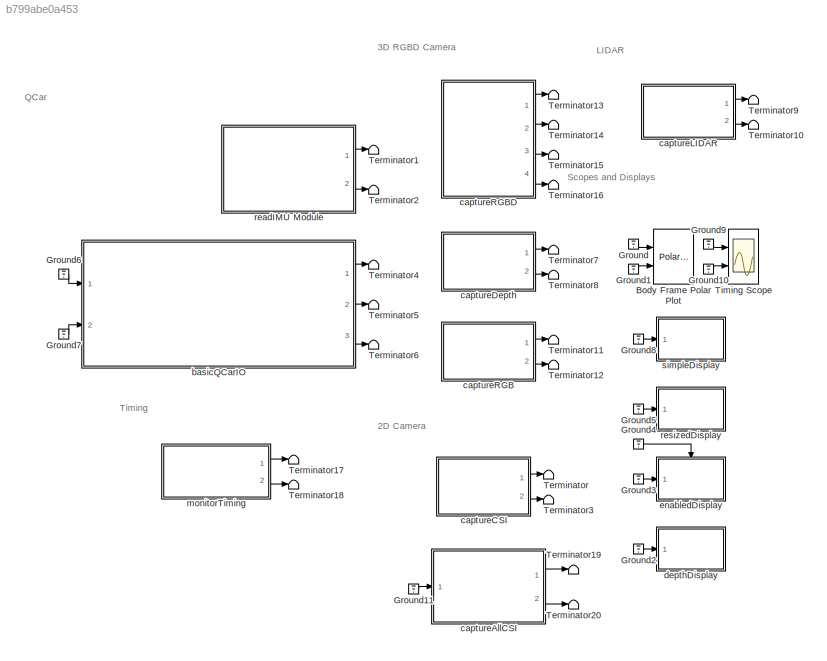
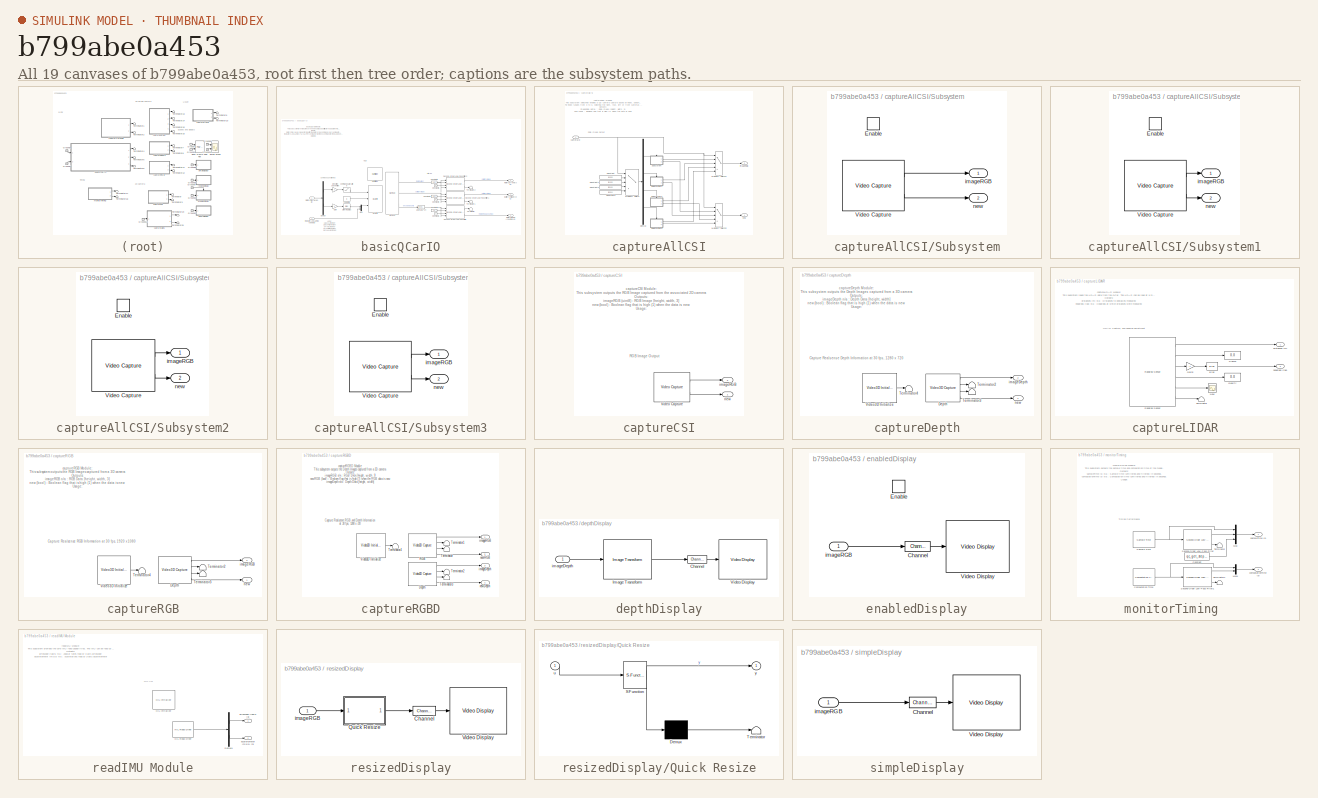
[diagram: thumbnail index - all 19 canvases of the model, root first then tree order]
MODEL slx_b799abe0a453
KIND model
CONFIG AbsTol = auto
CONFIG EnableMultiTasking = on
CONFIG FixedStep = 0.002
CONFIG MaxStep = auto
CONFIG MinStep = auto
CONFIG RelTol = 1e-3
CONFIG SampleTimeConstraint = Unconstrained
CONFIG Solver = ode2
CONFIG SolverName = ode2
CONFIG StartTime = 0.0
CONFIG StopTime = inf
BLOCK [Reference] Body Frame Polar Plot  REF=quarc_library/Sinks/Figures/Polar Figure
  Ports = [2]
  SourceBlock = quarc_library/Sinks/Figures/Polar Figure
  SourceProductName = QUARC Targets
  SourceType = Polar Figure
BLOCK [Ground] Ground
BLOCK [Ground] Ground1
BLOCK [Ground] Ground10
BLOCK [Ground] Ground11
BLOCK [Ground] Ground2
BLOCK [Ground] Ground3
BLOCK [Ground] Ground4
BLOCK [Ground] Ground5
BLOCK [Ground] Ground6
BLOCK [Ground] Ground7
BLOCK [Ground] Ground8
BLOCK [Ground] Ground9
BLOCK [Terminator] Terminator
BLOCK [Terminator] Terminator1
BLOCK [Terminator] Terminator10
BLOCK [Terminator] Terminator11
BLOCK [Terminator] Terminator12
BLOCK [Terminator] Terminator13
BLOCK [Terminator] Terminator14
BLOCK [Terminator] Terminator15
BLOCK [Terminator] Terminator16
BLOCK [Terminator] Terminator17
BLOCK [Terminator] Terminator18
BLOCK [Terminator] Terminator19
BLOCK [Terminator] Terminator2
BLOCK [Terminator] Terminator20
BLOCK [Terminator] Terminator3
BLOCK [Terminator] Terminator4
BLOCK [Terminator] Terminator5
BLOCK [Terminator] Terminator6
BLOCK [Terminator] Terminator7
BLOCK [Terminator] Terminator8
BLOCK [Terminator] Terminator9
BLOCK [Scope] Timing Scope
  Floating = off
  NumInputPorts = 2
  Ports = [2]
  ScopeSpecificationString = Simulink.scopes.TimeScopeBlockCfg('CurrentConfiguration', extmgr.ConfigurationSet(extmgr.Configuration('Core','General UI',true),extmgr.Configuration('Core','Source UI',true),extmgr.Configuration('Sources','WiredSimulink',true,'DataLoggingVariableName','ScopeData1'),extmgr.Configuration('Visuals','Time Domain',true,'SerializedDisplays',{struct('MinYLimReal','0','MaxYLimReal','0.1','YLabelReal','s'...<+3614ch>
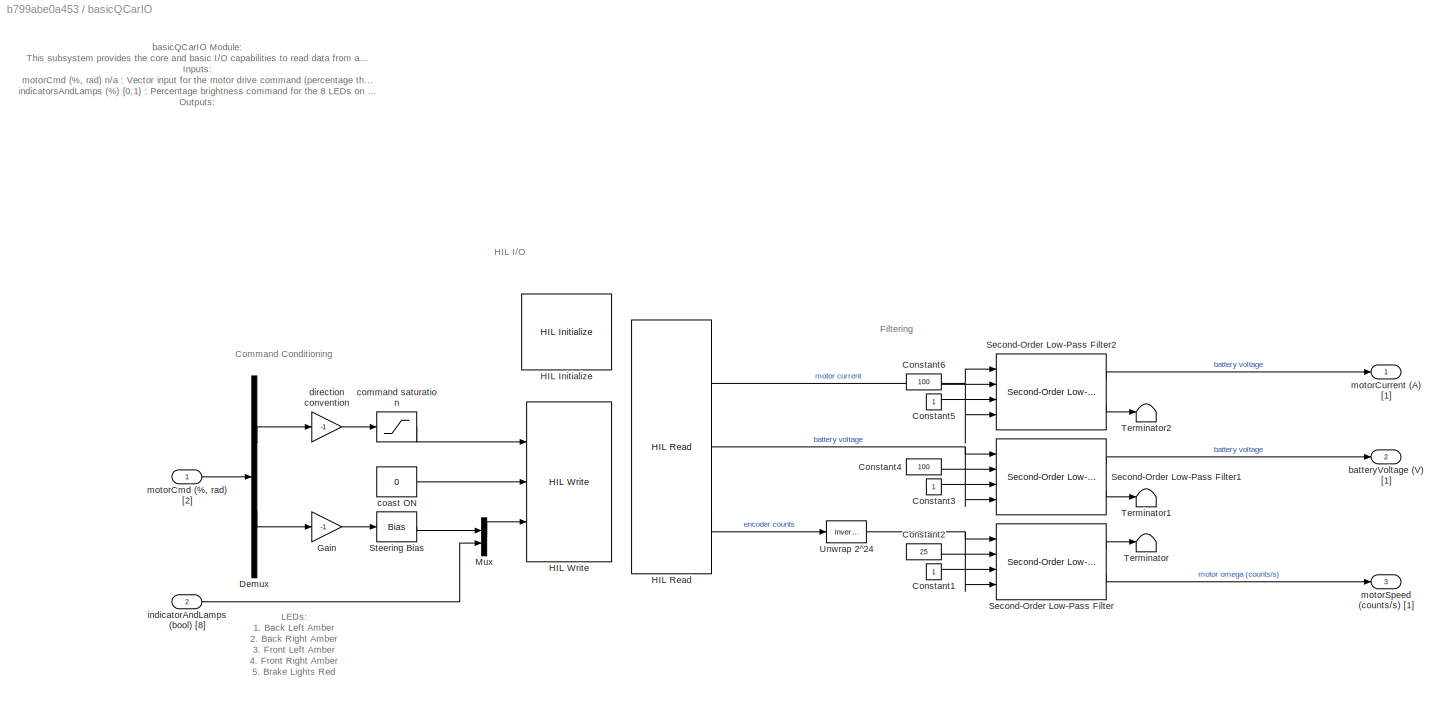
BLOCK [SubSystem] basicQCarIO
  Ports = [2, 3]
  RequestExecContextInheritance = off
BLOCK [Constant] basicQCarIO/Constant1
BLOCK [Constant] basicQCarIO/Constant2
  Value = 25
BLOCK [Constant] basicQCarIO/Constant3
BLOCK [Constant] basicQCarIO/Constant4
  Value = 100
BLOCK [Constant] basicQCarIO/Constant5
BLOCK [Constant] basicQCarIO/Constant6
  Value = 100
BLOCK [Demux] basicQCarIO/Demux
  DisplayOption = bar
  Outputs = 2
  Ports = [1, 2]
BLOCK [Gain] basicQCarIO/Gain
  Gain = -1
  OutDataTypeStr = Inherit: Inherit via internal rule
  ParamDataTypeStr = Inherit: Inherit via internal rule
  SaturateOnIntegerOverflow = off
BLOCK [Reference] basicQCarIO/HIL Initialize  REF=quarc_library/Data Acquisition/Generic/Configuration/HIL Initialize
  AttributesFormatString = %<object_name> (%<board_type>-%<board_number>)
  Ports = []
  SourceBlock = quarc_library/Data Acquisition/Generic/Configuration/HIL Initialize
  SourceProductName = QUARC Targets
  SourceType = HIL Initialize
  UserDataPersistent = on
BLOCK [Reference] basicQCarIO/HIL Read  REF=quarc_library/Data Acquisition/Generic/Immediate I//O/HIL Read
  AttributesFormatString = (%<object_name>)
  Ports = [0, 3]
  SourceBlock = quarc_library/Data Acquisition/Generic/Immediate I//O/HIL Read
  SourceProductName = QUARC Targets
  SourceType = HIL Read
  UserDataPersistent = on
BLOCK [Reference] basicQCarIO/HIL Write  REF=quarc_library/Data Acquisition/Generic/Immediate I//O/HIL Write
  AttributesFormatString = (%<object_name>)
  Ports = [3]
  SourceBlock = quarc_library/Data Acquisition/Generic/Immediate I//O/HIL Write
  SourceProductName = QUARC Targets
  SourceType = HIL Write
  UserDataPersistent = on
BLOCK [Mux] basicQCarIO/Mux
  DisplayOption = bar
  Inputs = 2
  Ports = [2, 1]
BLOCK [Reference] basicQCarIO/Second-Order Low-Pass Filter  REF=quarc_library/Continuous/Second-Order
Low-Pass Filter
  Ports = [4, 2]
  SourceBlock = quarc_library/Continuous/Second-Order\nLow-Pass Filter
  SourceProductName = QUARC Targets
  SourceType = Second-Order Low-Pass Filter
BLOCK [Reference] basicQCarIO/Second-Order Low-Pass Filter1  REF=quarc_library/Continuous/Second-Order
Low-Pass Filter
  Ports = [4, 2]
  SourceBlock = quarc_library/Continuous/Second-Order\nLow-Pass Filter
  SourceProductName = QUARC Targets
  SourceType = Second-Order Low-Pass Filter
BLOCK [Reference] basicQCarIO/Second-Order Low-Pass Filter2  REF=quarc_library/Continuous/Second-Order
Low-Pass Filter
  Ports = [4, 2]
  SourceBlock = quarc_library/Continuous/Second-Order\nLow-Pass Filter
  SourceProductName = QUARC Targets
  SourceType = Second-Order Low-Pass Filter
BLOCK [Bias] basicQCarIO/Steering Bias
  Bias = 0.0
  SaturateOnIntegerOverflow = off
BLOCK [Terminator] basicQCarIO/Terminator
BLOCK [Terminator] basicQCarIO/Terminator1
BLOCK [Terminator] basicQCarIO/Terminator2
BLOCK [Reference] basicQCarIO/Unwrap 2^24  REF=quarc_library/Discontinuities/Inverse
Modulus
  Ports = [1, 1]
  SourceBlock = quarc_library/Discontinuities/Inverse\nModulus
  SourceProductName = QUARC Targets
  SourceType = Inverse Modulus
BLOCK [Outport] basicQCarIO/batteryVoltage (V) [1]
  IconDisplay = Port number
  Port = 2
BLOCK [Constant] basicQCarIO/coast ON
  Value = 0
BLOCK [Saturate] basicQCarIO/command saturation
  InputPortMap = u0
  LowerLimit = -0.20
  Ports = [1, 1]
  UpperLimit = 0.20
BLOCK [Gain] basicQCarIO/direction convention
  Gain = -1
  OutDataTypeStr = Inherit: Inherit via internal rule
  ParamDataTypeStr = Inherit: Inherit via internal rule
  SaturateOnIntegerOverflow = off
BLOCK [Inport] basicQCarIO/indicatorAndLamps (bool) [8]
  IconDisplay = Port number
  Port = 2
BLOCK [Inport] basicQCarIO/motorCmd (%, rad) [2]
  IconDisplay = Port number
BLOCK [Outport] basicQCarIO/motorCurrent (A) [1]
  IconDisplay = Port number
BLOCK [Outport] basicQCarIO/motorSpeed (counts//s) [1]
  IconDisplay = Port number
  Port = 3
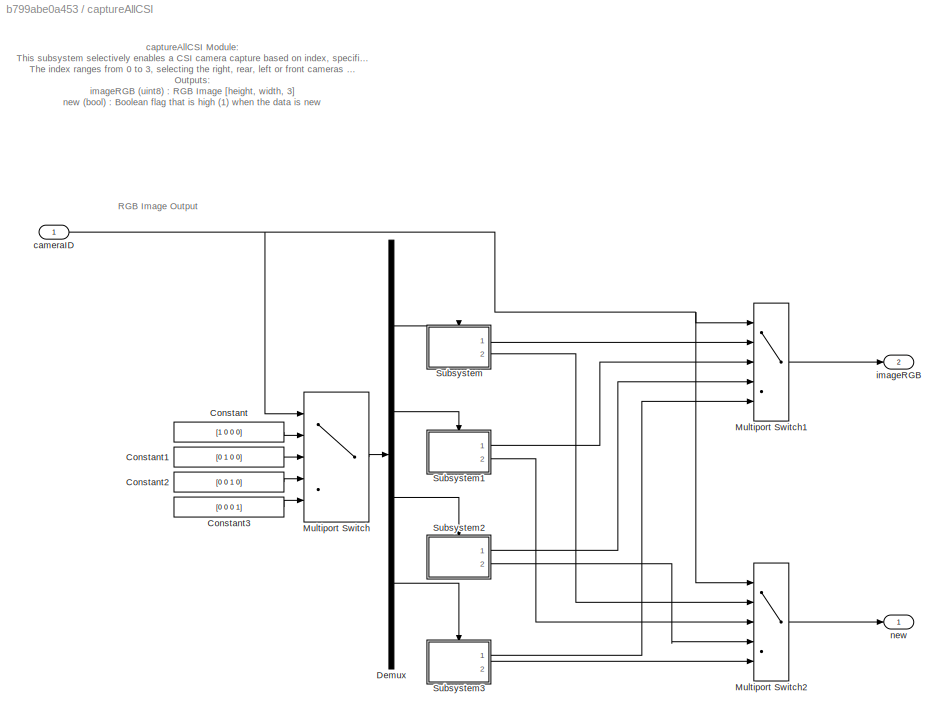
BLOCK [SubSystem] captureAllCSI
  Ports = [1, 2]
  RequestExecContextInheritance = off
BLOCK [Constant] captureAllCSI/Constant
  Value = [1 0 0 0]
BLOCK [Constant] captureAllCSI/Constant1
  Value = [0 1 0 0]
BLOCK [Constant] captureAllCSI/Constant2
  Value = [0 0 1 0]
BLOCK [Constant] captureAllCSI/Constant3
  Value = [0 0 0 1]
BLOCK [Demux] captureAllCSI/Demux
  DisplayOption = bar
  Ports = [1, 4]
BLOCK [MultiPortSwitch] captureAllCSI/Multiport Switch
  DataPortOrder = Zero-based contiguous
  DiagnosticForDefault = None
  InputSameDT = off
  Inputs = 4
  Ports = [5, 1]
  SaturateOnIntegerOverflow = off
  zeroidx = on
BLOCK [MultiPortSwitch] captureAllCSI/Multiport Switch1
  DataPortOrder = Zero-based contiguous
  DiagnosticForDefault = None
  InputSameDT = off
  Inputs = 4
  Ports = [5, 1]
  SaturateOnIntegerOverflow = off
  zeroidx = on
BLOCK [MultiPortSwitch] captureAllCSI/Multiport Switch2
  DataPortOrder = Zero-based contiguous
  DiagnosticForDefault = None
  InputSameDT = off
  Inputs = 4
  Ports = [5, 1]
  SaturateOnIntegerOverflow = off
  zeroidx = on
BLOCK [SubSystem] captureAllCSI/Subsystem
  Ports = [0, 2, 1]
  RequestExecContextInheritance = off
BLOCK [EnablePort] captureAllCSI/Subsystem/Enable
  Ports = []
BLOCK [Reference] captureAllCSI/Subsystem/Video Capture  REF=quarc_library/Multimedia/Video Capture
  Ports = [0, 2]
  SourceBlock = quarc_library/Multimedia/Video Capture
  SourceProductName = QUARC Targets
  SourceType = Video Capture
BLOCK [Outport] captureAllCSI/Subsystem/imageRGB
  IconDisplay = Port number
BLOCK [Outport] captureAllCSI/Subsystem/new
  IconDisplay = Port number
  Port = 2
BLOCK [SubSystem] captureAllCSI/Subsystem1
  Ports = [0, 2, 1]
  RequestExecContextInheritance = off
BLOCK [EnablePort] captureAllCSI/Subsystem1/Enable
  Ports = []
BLOCK [Reference] captureAllCSI/Subsystem1/Video Capture  REF=quarc_library/Multimedia/Video Capture
  Ports = [0, 2]
  SourceBlock = quarc_library/Multimedia/Video Capture
  SourceProductName = QUARC Targets
  SourceType = Video Capture
BLOCK [Outport] captureAllCSI/Subsystem1/imageRGB
  IconDisplay = Port number
BLOCK [Outport] captureAllCSI/Subsystem1/new
  IconDisplay = Port number
  Port = 2
BLOCK [SubSystem] captureAllCSI/Subsystem2
  Ports = [0, 2, 1]
  RequestExecContextInheritance = off
BLOCK [EnablePort] captureAllCSI/Subsystem2/Enable
  Ports = []
BLOCK [Reference] captureAllCSI/Subsystem2/Video Capture  REF=quarc_library/Multimedia/Video Capture
  Ports = [0, 2]
  SourceBlock = quarc_library/Multimedia/Video Capture
  SourceProductName = QUARC Targets
  SourceType = Video Capture
BLOCK [Outport] captureAllCSI/Subsystem2/imageRGB
  IconDisplay = Port number
BLOCK [Outport] captureAllCSI/Subsystem2/new
  IconDisplay = Port number
  Port = 2
BLOCK [SubSystem] captureAllCSI/Subsystem3
  Ports = [0, 2, 1]
  RequestExecContextInheritance = off
BLOCK [EnablePort] captureAllCSI/Subsystem3/Enable
  Ports = []
BLOCK [Reference] captureAllCSI/Subsystem3/Video Capture  REF=quarc_library/Multimedia/Video Capture
  Ports = [0, 2]
  SourceBlock = quarc_library/Multimedia/Video Capture
  SourceProductName = QUARC Targets
  SourceType = Video Capture
BLOCK [Outport] captureAllCSI/Subsystem3/imageRGB
  IconDisplay = Port number
BLOCK [Outport] captureAllCSI/Subsystem3/new
  IconDisplay = Port number
  Port = 2
BLOCK [Inport] captureAllCSI/cameraID
  IconDisplay = Port number
BLOCK [Outport] captureAllCSI/imageRGB
  IconDisplay = Port number
  Port = 2
BLOCK [Outport] captureAllCSI/new
  IconDisplay = Port number
BLOCK [SubSystem] captureCSI
  Ports = [0, 2]
  RequestExecContextInheritance = off
BLOCK [Reference] captureCSI/Video Capture  REF=quarc_library/Multimedia/Video Capture
  Ports = [0, 2]
  SourceBlock = quarc_library/Multimedia/Video Capture
  SourceProductName = QUARC Targets
  SourceType = Video Capture
BLOCK [Outport] captureCSI/imageRGB
  IconDisplay = Port number
  Port = 2
BLOCK [Outport] captureCSI/new
  IconDisplay = Port number
BLOCK [SubSystem] captureDepth
  Ports = [0, 2]
  RequestExecContextInheritance = off
BLOCK [Reference] captureDepth/Depth  REF=quarc_library/Multimedia/Video3D Capture
  Ports = [0, 4]
  SourceBlock = quarc_library/Multimedia/Video3D Capture
  SourceProductName = QUARC Targets
  SourceType = Video3D Capture
  UserDataPersistent = on
BLOCK [Terminator] captureDepth/Terminator2
BLOCK [Terminator] captureDepth/Terminator3
BLOCK [Terminator] captureDepth/Terminator4
BLOCK [Reference] captureDepth/Video3D Initialize  REF=quarc_library/Multimedia/Video3D Initialize
  Ports = [0, 1]
  SourceBlock = quarc_library/Multimedia/Video3D Initialize
  SourceProductName = QUARC Targets
  SourceType = Video3D Initialize
BLOCK [Outport] captureDepth/imageDepth
  IconDisplay = Port number
  Port = 2
BLOCK [Outport] captureDepth/new
  IconDisplay = Port number
BLOCK [SubSystem] captureLIDAR
  Ports = [0, 2]
  RequestExecContextInheritance = off
BLOCK [Bias] captureLIDAR/Bias
  Bias = pi/2
  SaturateOnIntegerOverflow = off
BLOCK [Gain] captureLIDAR/Gain2
  Gain = -1
  OutDataTypeStr = Inherit: Inherit via internal rule
  ParamDataTypeStr = Inherit: Inherit via internal rule
  SaturateOnIntegerOverflow = off
BLOCK [Scope] captureLIDAR/New
  Floating = off
  NumInputPorts = 1
  Ports = [1]
  ScopeSpecificationString = Simulink.scopes.TimeScopeBlockCfg('CurrentConfiguration', extmgr.ConfigurationSet(extmgr.Configuration('Core','General UI',true),extmgr.Configuration('Core','Source UI',true),extmgr.Configuration('Sources','WiredSimulink',true,'DataLoggingLimitDataPoints',true,'DataLoggingSaveFormat','Array','DataLoggingDecimation','1','DataLoggingDecimateData',true),extmgr.Configuration('Visuals','Time Domain',tr...<+1623ch>
BLOCK [Display] captureLIDAR/Quality
  Commented = on
  Decimation = 1
  Ports = [1]
BLOCK [Reference] captureLIDAR/Ranging Sensor  REF=quarc_library/Devices/Third-Party/Distance Sensors/Ranging Sensor
  Ports = [0, 6]
  SourceBlock = quarc_library/Devices/Third-Party/Distance Sensors/Ranging Sensor
  SourceProductName = QUARC Targets
  SourceType = Ranging Sensor
BLOCK [Display] captureLIDAR/Sigma
  Commented = on
  Decimation = 1
  Ports = [1]
BLOCK [Terminator] captureLIDAR/Terminator
BLOCK [Outport] captureLIDAR/distances (m)
  IconDisplay = Port number
BLOCK [Outport] captureLIDAR/headings (rad)
  IconDisplay = Port number
  Port = 2
BLOCK [SubSystem] captureRGB
  Ports = [0, 2]
  RequestExecContextInheritance = off
BLOCK [Reference] captureRGB/Depth  REF=quarc_library/Multimedia/Video3D Capture
  Ports = [0, 4]
  SourceBlock = quarc_library/Multimedia/Video3D Capture
  SourceProductName = QUARC Targets
  SourceType = Video3D Capture
  UserDataPersistent = on
BLOCK [Terminator] captureRGB/Terminator2
BLOCK [Terminator] captureRGB/Terminator3
BLOCK [Terminator] captureRGB/Terminator4
BLOCK [Reference] captureRGB/Video3D Initialize  REF=quarc_library/Multimedia/Video3D Initialize
  Ports = [0, 1]
  SourceBlock = quarc_library/Multimedia/Video3D Initialize
  SourceProductName = QUARC Targets
  SourceType = Video3D Initialize
BLOCK [Outport] captureRGB/imageRGB
  IconDisplay = Port number
  Port = 2
BLOCK [Outport] captureRGB/new
  IconDisplay = Port number
BLOCK [SubSystem] captureRGBD
  Ports = [0, 4]
  RequestExecContextInheritance = off
BLOCK [Reference] captureRGBD/Depth  REF=quarc_library/Multimedia/Video3D Capture
  Ports = [0, 4]
  SourceBlock = quarc_library/Multimedia/Video3D Capture
  SourceProductName = QUARC Targets
  SourceType = Video3D Capture
  UserDataPersistent = on
BLOCK [Reference] captureRGBD/RGB  REF=quarc_library/Multimedia/Video3D Capture
  Ports = [0, 4]
  SourceBlock = quarc_library/Multimedia/Video3D Capture
  SourceProductName = QUARC Targets
  SourceType = Video3D Capture
  UserDataPersistent = on
BLOCK [Terminator] captureRGBD/Terminator
BLOCK [Terminator] captureRGBD/Terminator1
BLOCK [Terminator] captureRGBD/Terminator2
BLOCK [Terminator] captureRGBD/Terminator3
BLOCK [Terminator] captureRGBD/Terminator4
BLOCK [Reference] captureRGBD/Video3D Initialize  REF=quarc_library/Multimedia/Video3D Initialize
  Ports = [0, 1]
  SourceBlock = quarc_library/Multimedia/Video3D Initialize
  SourceProductName = QUARC Targets
  SourceType = Video3D Initialize
BLOCK [Outport] captureRGBD/imageDepth
  IconDisplay = Port number
  Port = 3
BLOCK [Outport] captureRGBD/imageRGB
  IconDisplay = Port number
BLOCK [Outport] captureRGBD/newDepth
  IconDisplay = Port number
  Port = 4
BLOCK [Outport] captureRGBD/newRGB
  IconDisplay = Port number
  Port = 2
BLOCK [SubSystem] depthDisplay
  Ports = [1]
  RequestExecContextInheritance = off
BLOCK [Reference] depthDisplay/Channel  REF=quarc_library/Signal Routing/Channel
  Ports = [1, 1]
  SourceBlock = quarc_library/Signal Routing/Channel
  SourceProductName = QUARC Targets
  SourceType = Channel
BLOCK [Reference] depthDisplay/Image Transform  REF=quarc_library/Image Processing/Generic/Image Transform
  AttributesFormatString = (%<algorithm>)
  Ports = [1, 1]
  SourceBlock = quarc_library/Image Processing/Generic/Image Transform
  SourceProductName = QUARC Targets
  SourceType = Image Transform
BLOCK [Reference] depthDisplay/Video Display  REF=quarc_library/Multimedia/Video Display
  Ports = [1]
  SourceBlock = quarc_library/Multimedia/Video Display
  SourceProductName = QUARC Targets
  SourceType = Video Display
  Tag = Essential_Unit/depthDisplay/Video Display
  UserDataPersistent = on
BLOCK [Inport] depthDisplay/imageDepth
  IconDisplay = Port number
BLOCK [SubSystem] enabledDisplay
  Ports = [1, 0, 1]
  RequestExecContextInheritance = off
BLOCK [Reference] enabledDisplay/Channel  REF=quarc_library/Signal Routing/Channel
  Ports = [1, 1]
  SourceBlock = quarc_library/Signal Routing/Channel
  SourceProductName = QUARC Targets
  SourceType = Channel
BLOCK [EnablePort] enabledDisplay/Enable
  Ports = []
  PropagateVarSize = During execution
BLOCK [Reference] enabledDisplay/Video Display  REF=quarc_library/Multimedia/Video Display
  Ports = [1]
  SourceBlock = quarc_library/Multimedia/Video Display
  SourceProductName = QUARC Targets
  SourceType = Video Display
  Tag = Essential_Unit/enabledDisplay/Video Display
  UserDataPersistent = on
BLOCK [Inport] enabledDisplay/imageRGB
  IconDisplay = Port number
BLOCK [SubSystem] monitorTiming 
  Ports = [0, 2]
  RequestExecContextInheritance = off
BLOCK [Reference] monitorTiming /Computation Time  REF=quarc_library/Sources/Time/Computation Time
  Ports = [0, 1]
  SourceBlock = quarc_library/Sources/Time/Computation Time
  SourceProductName = QUARC Targets
  SourceType = Computation Time
BLOCK [Constant] monitorTiming /Constant
  Value = qc_get_step_size
BLOCK [Mux] monitorTiming /Mux
  DisplayOption = bar
  Inputs = 3
  Ports = [3, 1]
BLOCK [Mux] monitorTiming /Mux1
  DisplayOption = bar
  Inputs = 2
  Ports = [2, 1]
BLOCK [Reference] monitorTiming /Sample Time  REF=quarc_library/Sources/Time/Sample Time
  Ports = [0, 1]
  Priority = -99
  SourceBlock = quarc_library/Sources/Time/Sample Time
  SourceProductName = QUARC Targets
  SourceType = Sample Time
BLOCK [Reference] monitorTiming /Second-Order Low-Pass Filter  REF=quarc_library/Continuous/Second-Order
Low-Pass Filter
  Ports = [1, 2]
  SourceBlock = quarc_library/Continuous/Second-Order\nLow-Pass Filter
  SourceProductName = QUARC Targets
  SourceType = Second-Order Low-Pass Filter
BLOCK [Reference] monitorTiming /Second-Order Low-Pass Filter1  REF=quarc_library/Continuous/Second-Order
Low-Pass Filter
  Ports = [1, 2]
  SourceBlock = quarc_library/Continuous/Second-Order\nLow-Pass Filter
  SourceProductName = QUARC Targets
  SourceType = Second-Order Low-Pass Filter
BLOCK [Terminator] monitorTiming /Terminator
BLOCK [Terminator] monitorTiming /Terminator1
BLOCK [Outport] monitorTiming /computationTime (s)
  IconDisplay = Port number
  Port = 2
BLOCK [Outport] monitorTiming /sampleTime (s)
  IconDisplay = Port number
BLOCK [SubSystem] readIMU Module
  Ports = [0, 2]
  RequestExecContextInheritance = off
BLOCK [Demux] readIMU Module/Demux1
  DisplayOption = bar
  Outputs = [3 3]
  Ports = [1, 2]
BLOCK [Reference] readIMU Module/HIL Initialize  REF=quarc_library/Data Acquisition/Generic/Configuration/HIL Initialize
  AttributesFormatString = %<object_name> (%<board_type>-%<board_number>)
  Ports = []
  SourceBlock = quarc_library/Data Acquisition/Generic/Configuration/HIL Initialize
  SourceProductName = QUARC Targets
  SourceType = HIL Initialize
  UserDataPersistent = on
BLOCK [Reference] readIMU Module/HIL Read Other  REF=quarc_library/Data Acquisition/Generic/Immediate I//O/HIL Read Other
  AttributesFormatString = (%<object_name>)
  Ports = [0, 1]
  SourceBlock = quarc_library/Data Acquisition/Generic/Immediate I//O/HIL Read Other
  SourceProductName = QUARC Targets
  SourceType = HIL Read Other
  UserDataPersistent = on
BLOCK [Outport] readIMU Module/accelerometer (m//s//s) [3]
  IconDisplay = Port number
  Port = 2
BLOCK [Outport] readIMU Module/gyroscope (rad//s) [3]
  IconDisplay = Port number
BLOCK [SubSystem] resizedDisplay
  Ports = [1]
  RequestExecContextInheritance = off
BLOCK [Reference] resizedDisplay/Channel  REF=quarc_library/Signal Routing/Channel
  Ports = [1, 1]
  SourceBlock = quarc_library/Signal Routing/Channel
  SourceProductName = QUARC Targets
  SourceType = Channel
BLOCK [SubSystem] resizedDisplay/Quick Resize
  ErrorFcn = Stateflow.Translate.translate
  PermitHierarchicalResolution = ExplicitOnly
  Ports = [1, 1]
  RequestExecContextInheritance = off
  SFBlockType = MATLAB Function
  TreatAsAtomicUnit = on
BLOCK [Demux] resizedDisplay/Quick Resize/ Demux 
  Outputs = 1
  Ports = [1, 1]
BLOCK [S-Function] resizedDisplay/Quick Resize/ SFunction 
  EnableBusSupport = on
  FunctionName = sf_sfun
  PortCounts = [1 2]
  Ports = [1, 2]
  SFcnIsStateOwnerBlock = off
  SFunctionDeploymentMode = off
  Tag = Stateflow S-Function Essential_Unit 2
BLOCK [Terminator] resizedDisplay/Quick Resize/ Terminator 
BLOCK [Inport] resizedDisplay/Quick Resize/u
  IconDisplay = Port number
BLOCK [Outport] resizedDisplay/Quick Resize/y
  IconDisplay = Port number
BLOCK [Reference] resizedDisplay/Video Display  REF=quarc_library/Multimedia/Video Display
  Ports = [1]
  SourceBlock = quarc_library/Multimedia/Video Display
  SourceProductName = QUARC Targets
  SourceType = Video Display
  Tag = Essential_Unit/resizedDisplay/Video Display
  UserDataPersistent = on
BLOCK [Inport] resizedDisplay/imageRGB
  IconDisplay = Port number
BLOCK [SubSystem] simpleDisplay
  Ports = [1]
  RequestExecContextInheritance = off
BLOCK [Reference] simpleDisplay/Channel  REF=quarc_library/Signal Routing/Channel
  Ports = [1, 1]
  SourceBlock = quarc_library/Signal Routing/Channel
  SourceProductName = QUARC Targets
  SourceType = Channel
BLOCK [Reference] simpleDisplay/Video Display  REF=quarc_library/Multimedia/Video Display
  Ports = [1]
  SourceBlock = quarc_library/Multimedia/Video Display
  SourceProductName = QUARC Targets
  SourceType = Video Display
  Tag = Essential_Unit/simpleDisplay/Video Display
  UserDataPersistent = on
BLOCK [Inport] simpleDisplay/imageRGB
  IconDisplay = Port number
ANNOTATION (root): 2D Camera
ANNOTATION (root): 3D RGBD Camera
ANNOTATION (root): LIDAR
ANNOTATION (root): QCar
ANNOTATION (root): Scopes and Displays
ANNOTATION (root): Timing
ANNOTATION basicQCarIO: basicQCarIO Module: This subsystem provides the core and basic I/O capabilities to read data from and write data to the QCar platform. The HIL Initialize block configures the IO settings, and the HIL Write and Read blocks are used for the actual IO. You can also monitor sample and communication times. Inputs: motorCmd (%, rad) n/a : Vector input for the motor drive command (percentage throttle) as...<+426ch>
ANNOTATION basicQCarIO: LEDs: 1. Back Left Amber 2. Back Right Amber 3. Front Left Amber 4. Front Right Amber 5. Brake Lights Red 6. Reverse White 7. Left Headlamps White 8. Right Headlamps White
ANNOTATION basicQCarIO: Command Conditioning
ANNOTATION basicQCarIO: Filtering
ANNOTATION basicQCarIO: HIL I/O
ANNOTATION captureAllCSI: captureAllCSI Module: This subsystem selectively enables a CSI camera capture based on index, specifically for the QCar. The index ranges from 0 to 3, selecting the right, rear, left or front cameras respectively. The computation time in this case is NOT quadrupled, as only one camera provides the image at a time. Outputs: imageRGB (uint8) : RGB Image [height, width, 3] new (bool) : Boolean flag t...<+36ch>
ANNOTATION captureAllCSI: RGB Image Output
ANNOTATION captureCSI: captureCSI Module: This subsystem outputs the RGB Image captured from the associated 2D camera Outputs: imageRGB (uint8) : RGB Image [height, width, 3] new (bool) : Boolean flag that is high (1) when the data is new Usage: Double-click the Video Capture block and set the 'Device Identifier' parameter to the desired value. Also set the desired resolution and frame rate.
ANNOTATION captureCSI: RGB Image Output
ANNOTATION captureDepth: captureDepth Module: This subsystem outputs the Depth Images captured from a 3D camera Outputs: image Depth n/a : Depth Data [height, width] new (bool) : Boolean flag that is high (1) when the data is new Usage: Connect the new ports to the Enable/Trigger port of Enabled/Triggered subsystems that contain your code when using the image data.
ANNOTATION captureDepth: Capture Realsense Depth Information at 30 fps, 1280 x 720
ANNOTATION captureLIDAR: captureLIDAR Module: This subsystem reads the LIDAR data from the QCar. The LIDAR can be read at a maximum rate of 10 Hz, and outputs 720 points of data (every 0.5 degrees). Outputs: distances (m) n/a : Distances to obstacles measured headings (rad) n/a : Headings at which distances were measured
ANNOTATION captureLIDAR: LIDAR Capture, and heading adjustment
ANNOTATION captureRGB: captureRGB Module: This subsystem outputs the RGB Images captured from a 3D camera Outputs: imageRGB n/a : RGB Data [height, width, 3] new (bool) : Boolean flag that is high (1) when the data is new Usage: Connect the new ports to the Enable/Trigger port of Enabled/Triggered subsystems that contain your code when using the image data.
ANNOTATION captureRGB: Capture Realsense RGB Information at 30 fps, 1920 x 1080
ANNOTATION captureRGBD: captureRGBD Module: This subsystem outputs the Depth Images captured from a 3D camera Outputs: imageRGB n/a : RGB Data [height, width, 3] newRGB (bool) : Boolean flag that is high (1) when the RGB data is new imageDepth n/a : Depth Data [height, width] newDepth (bool) : Boolean flag that is high (1) when the depth data is new Usage: Connect the new ports to the Enable/Trigger port of Enabled/Trigg...<+65ch>
ANNOTATION captureRGBD: Capture Realsense RGB and Depth Information at 30 fps, 1280 x 720
ANNOTATION monitorTiming : moniorTiming Module: This subsystem outputs the sample time and computation time of the model. Outputs: sampleTime (s) n/a : Sample time (unfiltered and filtered) in seconds. computationTime (s) n/a : Computation time (unfiltered and filtered) in seconds. Usage: Compare the Sample Time (s) output to a constant (qc_get_step_size) to monitor whether or not the desired sample time is being achieved. ...<+145ch>
ANNOTATION monitorTiming : Timing Performance
ANNOTATION readIMU Module: readIMU Module: This subsystem provides the core IMU read capabilities. The IMU can be read up to a maximum rate of 500 Hz, and thus should typically be read using a separate block than other reads. Outputs: gyroscope (rad/s) n/a : Angular rates read by 3-axis gyroscope accelerometer (m/s/s) n/a : Accelerations read by 3-axis accelerometer
ANNOTATION readIMU Module: HIL I/O
LINE Ground10:1 -> Timing Scope:2
LINE Ground11:1 -> captureAllCSI:1
LINE Ground1:1 -> Body Frame Polar Plot:2
LINE Ground2:1 -> depthDisplay:1
LINE Ground3:1 -> enabledDisplay:1
LINE Ground4:1 -> enabledDisplay:enable
LINE Ground5:1 -> resizedDisplay:1
LINE Ground6:1 -> basicQCarIO:1
LINE Ground7:1 -> basicQCarIO:2
LINE Ground8:1 -> simpleDisplay:1
LINE Ground9:1 -> Timing Scope:1
LINE Ground:1 -> Body Frame Polar Plot:1
LINE basicQCarIO/Constant1:1 -> basicQCarIO/Second-Order Low-Pass Filter:3
LINE basicQCarIO/Constant2:1 -> basicQCarIO/Second-Order Low-Pass Filter:2
LINE basicQCarIO/Constant3:1 -> basicQCarIO/Second-Order Low-Pass Filter1:3
LINE basicQCarIO/Constant4:1 -> basicQCarIO/Second-Order Low-Pass Filter1:2
LINE basicQCarIO/Constant5:1 -> basicQCarIO/Second-Order Low-Pass Filter2:3
LINE basicQCarIO/Constant6:1 -> basicQCarIO/Second-Order Low-Pass Filter2:2
LINE basicQCarIO/Demux:1 -> basicQCarIO/direction convention:1
LINE basicQCarIO/Demux:2 -> basicQCarIO/Gain:1
LINE basicQCarIO/Gain:1 -> basicQCarIO/Steering Bias:1
NET basicQCarIO/HIL Read:1 -> basicQCarIO/Second-Order Low-Pass Filter2:1, basicQCarIO/Second-Order Low-Pass Filter2:4
NET basicQCarIO/HIL Read:2 -> basicQCarIO/Second-Order Low-Pass Filter1:1, basicQCarIO/Second-Order Low-Pass Filter1:4
LINE basicQCarIO/HIL Read:3 -> basicQCarIO/Unwrap 2^24:1
LINE basicQCarIO/Mux:1 -> basicQCarIO/HIL Write:3
LINE basicQCarIO/Second-Order Low-Pass Filter1:1 -> basicQCarIO/batteryVoltage (V) [1]:1
LINE basicQCarIO/Second-Order Low-Pass Filter1:2 -> basicQCarIO/Terminator1:1
LINE basicQCarIO/Second-Order Low-Pass Filter2:1 -> basicQCarIO/motorCurrent (A) [1]:1
LINE basicQCarIO/Second-Order Low-Pass Filter2:2 -> basicQCarIO/Terminator2:1
LINE basicQCarIO/Second-Order Low-Pass Filter:1 -> basicQCarIO/Terminator:1
LINE basicQCarIO/Second-Order Low-Pass Filter:2 -> basicQCarIO/motorSpeed (counts//s) [1]:1
LINE basicQCarIO/Steering Bias:1 -> basicQCarIO/Mux:1
NET basicQCarIO/Unwrap 2^24:1 -> basicQCarIO/Second-Order Low-Pass Filter:1, basicQCarIO/Second-Order Low-Pass Filter:4
LINE basicQCarIO/coast ON:1 -> basicQCarIO/HIL Write:2
LINE basicQCarIO/command saturation:1 -> basicQCarIO/HIL Write:1
LINE basicQCarIO/direction convention:1 -> basicQCarIO/command saturation:1
LINE basicQCarIO/indicatorAndLamps (bool) [8]:1 -> basicQCarIO/Mux:2
LINE basicQCarIO/motorCmd (%, rad) [2]:1 -> basicQCarIO/Demux:1
LINE basicQCarIO:1 -> Terminator4:1
LINE basicQCarIO:2 -> Terminator5:1
LINE basicQCarIO:3 -> Terminator6:1
LINE captureAllCSI/Constant1:1 -> captureAllCSI/Multiport Switch:3
LINE captureAllCSI/Constant2:1 -> captureAllCSI/Multiport Switch:4
LINE captureAllCSI/Constant3:1 -> captureAllCSI/Multiport Switch:5
LINE captureAllCSI/Constant:1 -> captureAllCSI/Multiport Switch:2
LINE captureAllCSI/Demux:1 -> captureAllCSI/Subsystem:enable
LINE captureAllCSI/Demux:2 -> captureAllCSI/Subsystem1:enable
LINE captureAllCSI/Demux:3 -> captureAllCSI/Subsystem2:enable
LINE captureAllCSI/Demux:4 -> captureAllCSI/Subsystem3:enable
LINE captureAllCSI/Multiport Switch1:1 -> captureAllCSI/imageRGB:1
LINE captureAllCSI/Multiport Switch2:1 -> captureAllCSI/new:1
LINE captureAllCSI/Multiport Switch:1 -> captureAllCSI/Demux:1
LINE captureAllCSI/Subsystem/Video Capture:1 -> captureAllCSI/Subsystem/imageRGB:1
LINE captureAllCSI/Subsystem/Video Capture:2 -> captureAllCSI/Subsystem/new:1
LINE captureAllCSI/Subsystem1/Video Capture:1 -> captureAllCSI/Subsystem1/imageRGB:1
LINE captureAllCSI/Subsystem1/Video Capture:2 -> captureAllCSI/Subsystem1/new:1
LINE captureAllCSI/Subsystem1:1 -> captureAllCSI/Multiport Switch1:3
LINE captureAllCSI/Subsystem1:2 -> captureAllCSI/Multiport Switch2:3
LINE captureAllCSI/Subsystem2/Video Capture:1 -> captureAllCSI/Subsystem2/imageRGB:1
LINE captureAllCSI/Subsystem2/Video Capture:2 -> captureAllCSI/Subsystem2/new:1
LINE captureAllCSI/Subsystem2:1 -> captureAllCSI/Multiport Switch1:4
LINE captureAllCSI/Subsystem2:2 -> captureAllCSI/Multiport Switch2:4
LINE captureAllCSI/Subsystem3/Video Capture:1 -> captureAllCSI/Subsystem3/imageRGB:1
LINE captureAllCSI/Subsystem3/Video Capture:2 -> captureAllCSI/Subsystem3/new:1
LINE captureAllCSI/Subsystem3:1 -> captureAllCSI/Multiport Switch1:5
LINE captureAllCSI/Subsystem3:2 -> captureAllCSI/Multiport Switch2:5
LINE captureAllCSI/Subsystem:1 -> captureAllCSI/Multiport Switch1:2
LINE captureAllCSI/Subsystem:2 -> captureAllCSI/Multiport Switch2:2
NET captureAllCSI/cameraID:1 -> captureAllCSI/Multiport Switch1:1, captureAllCSI/Multiport Switch2:1, captureAllCSI/Multiport Switch:1
LINE captureAllCSI:1 -> Terminator19:1
LINE captureAllCSI:2 -> Terminator20:1
LINE captureCSI/Video Capture:1 -> captureCSI/imageRGB:1
LINE captureCSI/Video Capture:2 -> captureCSI/new:1
LINE captureCSI:1 -> Terminator:1
LINE captureCSI:2 -> Terminator3:1
LINE captureDepth/Depth:1 -> captureDepth/imageDepth:1
LINE captureDepth/Depth:2 -> captureDepth/Terminator2:1
LINE captureDepth/Depth:3 -> captureDepth/Terminator3:1
LINE captureDepth/Depth:4 -> captureDepth/new:1
LINE captureDepth/Video3D Initialize:1 -> captureDepth/Terminator4:1
LINE captureDepth:1 -> Terminator7:1
LINE captureDepth:2 -> Terminator8:1
LINE captureLIDAR/Bias:1 -> captureLIDAR/headings (rad):1
LINE captureLIDAR/Gain2:1 -> captureLIDAR/Bias:1
LINE captureLIDAR/Ranging Sensor:1 -> captureLIDAR/distances (m):1
LINE captureLIDAR/Ranging Sensor:2 -> captureLIDAR/Sigma:1
LINE captureLIDAR/Ranging Sensor:3 -> captureLIDAR/Gain2:1
LINE captureLIDAR/Ranging Sensor:4 -> captureLIDAR/Quality:1
LINE captureLIDAR/Ranging Sensor:5 -> captureLIDAR/New:1
LINE captureLIDAR/Ranging Sensor:6 -> captureLIDAR/Terminator:1
LINE captureLIDAR:1 -> Terminator9:1
LINE captureLIDAR:2 -> Terminator10:1
LINE captureRGB/Depth:1 -> captureRGB/imageRGB:1
LINE captureRGB/Depth:2 -> captureRGB/Terminator2:1
LINE captureRGB/Depth:3 -> captureRGB/Terminator3:1
LINE captureRGB/Depth:4 -> captureRGB/new:1
LINE captureRGB/Video3D Initialize:1 -> captureRGB/Terminator4:1
LINE captureRGB:1 -> Terminator11:1
LINE captureRGB:2 -> Terminator12:1
LINE captureRGBD/Depth:1 -> captureRGBD/imageDepth:1
LINE captureRGBD/Depth:2 -> captureRGBD/Terminator2:1
LINE captureRGBD/Depth:3 -> captureRGBD/Terminator3:1
LINE captureRGBD/Depth:4 -> captureRGBD/newDepth:1
LINE captureRGBD/RGB:1 -> captureRGBD/imageRGB:1
LINE captureRGBD/RGB:2 -> captureRGBD/Terminator1:1
LINE captureRGBD/RGB:3 -> captureRGBD/Terminator:1
LINE captureRGBD/RGB:4 -> captureRGBD/newRGB:1
LINE captureRGBD/Video3D Initialize:1 -> captureRGBD/Terminator4:1
LINE captureRGBD:1 -> Terminator13:1
LINE captureRGBD:2 -> Terminator14:1
LINE captureRGBD:3 -> Terminator15:1
LINE captureRGBD:4 -> Terminator16:1
LINE depthDisplay/Channel:1 -> depthDisplay/Video Display:1
LINE depthDisplay/Image Transform:1 -> depthDisplay/Channel:1
LINE depthDisplay/imageDepth:1 -> depthDisplay/Image Transform:1
LINE enabledDisplay/Channel:1 -> enabledDisplay/Video Display:1
LINE enabledDisplay/imageRGB:1 -> enabledDisplay/Channel:1
NET monitorTiming /Computation Time:1 -> monitorTiming /Mux1:1, monitorTiming /Second-Order Low-Pass Filter1:1
LINE monitorTiming /Constant:1 -> monitorTiming /Mux:3
LINE monitorTiming /Mux1:1 -> monitorTiming /computationTime (s):1
LINE monitorTiming /Mux:1 -> monitorTiming /sampleTime (s):1
NET monitorTiming /Sample Time:1 -> monitorTiming /Mux:1, monitorTiming /Second-Order Low-Pass Filter:1
LINE monitorTiming /Second-Order Low-Pass Filter1:1 -> monitorTiming /Mux1:2
LINE monitorTiming /Second-Order Low-Pass Filter1:2 -> monitorTiming /Terminator1:1
LINE monitorTiming /Second-Order Low-Pass Filter:1 -> monitorTiming /Mux:2
LINE monitorTiming /Second-Order Low-Pass Filter:2 -> monitorTiming /Terminator:1
LINE monitorTiming :1 -> Terminator17:1
LINE monitorTiming :2 -> Terminator18:1
LINE readIMU Module/Demux1:1 -> readIMU Module/gyroscope (rad//s) [3]:1
LINE readIMU Module/Demux1:2 -> readIMU Module/accelerometer (m//s//s) [3]:1
LINE readIMU Module/HIL Read Other:1 -> readIMU Module/Demux1:1
LINE readIMU Module:1 -> Terminator1:1
LINE readIMU Module:2 -> Terminator2:1
LINE resizedDisplay/Channel:1 -> resizedDisplay/Video Display:1
LINE resizedDisplay/Quick Resize:1 -> resizedDisplay/Channel:1
LINE resizedDisplay/imageRGB:1 -> resizedDisplay/Quick Resize:1
LINE simpleDisplay/Channel:1 -> simpleDisplay/Video Display:1
LINE simpleDisplay/imageRGB:1 -> simpleDisplay/Channel:1
note: NET lines group one-source signal fan-out (src -> all destinations, sorted); 1:1 wires keep LINE
CHART resizedDisplay/Quick Resize states=1 transitions=1
  STATE_LABEL 'eML_blk_kernel()'
  STATE_LABEL 'SCRIPT:\nfunction y = quickResize(u)\n\nscale = 2;\n    if length(size(u)) == 3\n        y = u(1:scale:end, 1:scale:end, :);\n    else\n        y = u(1:scale:end, 1:scale:end);\n    end\n\nend'
